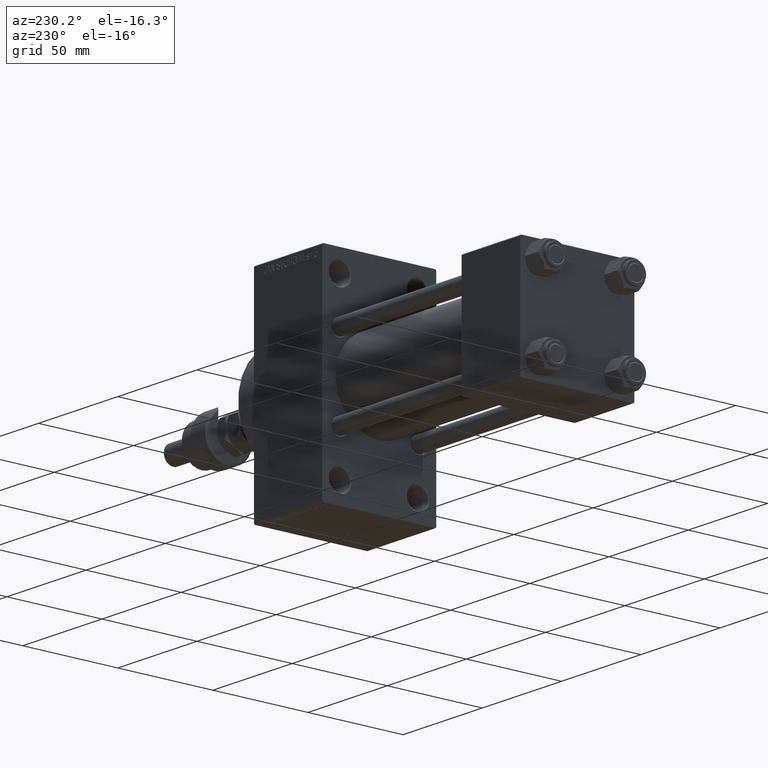
[diagram: clean part render]
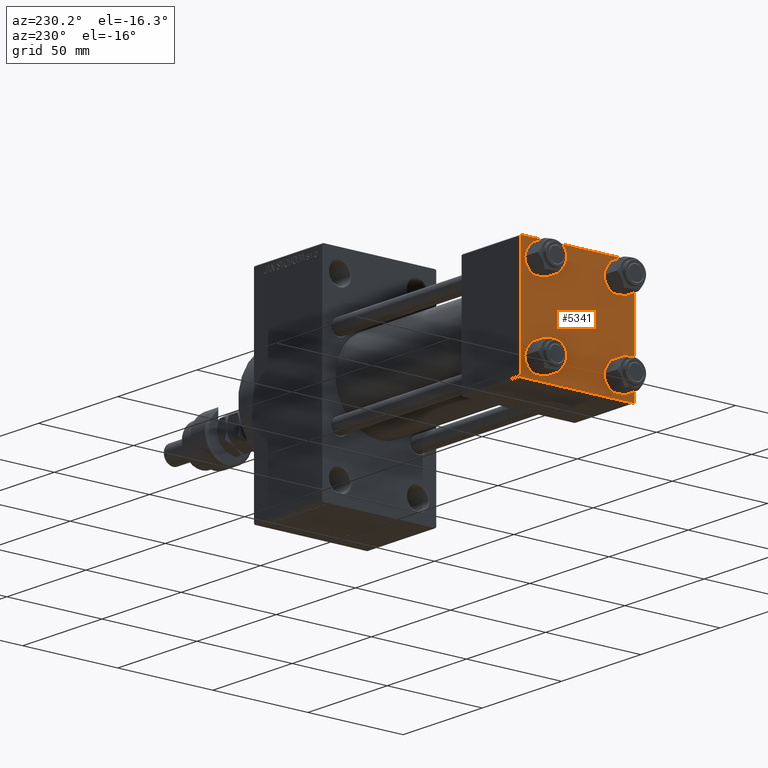
[diagram: same view with one face highlighted and labeled with its STEP entity id]
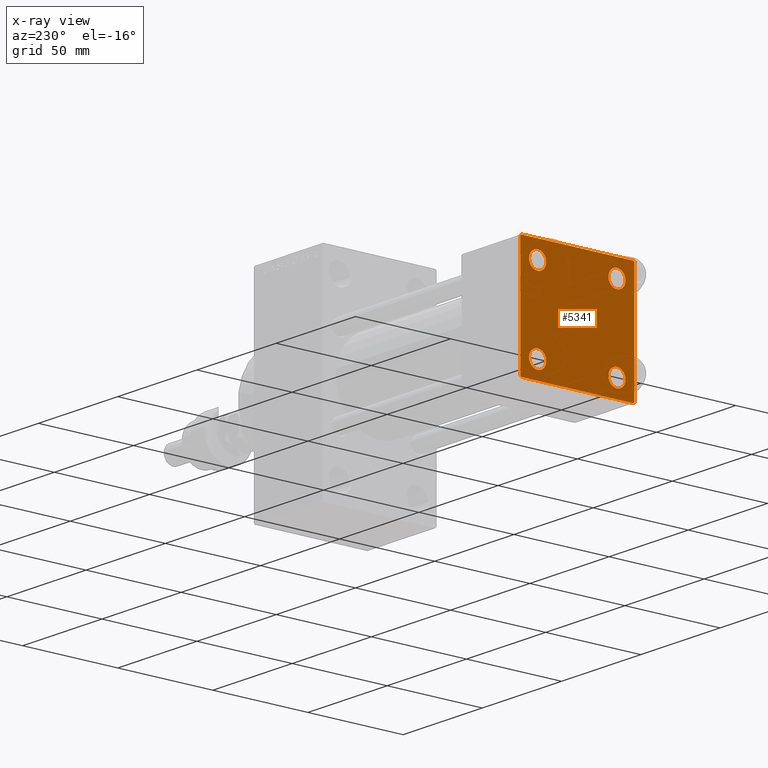
[diagram: x-ray of the same camera — body ghosted, the highlighted face saturated]
A machine part, auxiliary view. The second image highlights one B-rep face of the part: STEP entity #5341.
The next image is the same camera in x-ray: the body ghosted, the highlighted face saturated — about 0% of this face is hidden behind the body in this view.
In plain terms, the highlighted planar face has unit normal (-1, 0, 0).
Its self-contained STEP definition (entity closure, byte-faithful):
#428 = CARTESIAN_POINT ( 'NONE',  ( 0.000000000000000000, -29.49999999999998579, 29.99999999999999289 ) ) ;
#661 = VECTOR ( 'NONE', #11558, 1000.000000000000000 ) ;
#783 = EDGE_CURVE ( 'NONE', #28295, #49332, #1741, .T. ) ;
#871 = LINE ( 'NONE', #47656, #21220 ) ;
#956 = DIRECTION ( 'NONE',  ( 0.000000000000000000, -1.000000000000000000, -1.156482317317871725E-16 ) ) ;
#1286 = DIRECTION ( 'NONE',  ( 0.000000000000000000, 0.000000000000000000, 1.000000000000000000 ) ) ;
#1647 = DIRECTION ( 'NONE',  ( 1.000000000000000000, -0.000000000000000000, 0.000000000000000000 ) ) ;
#1741 = CIRCLE ( 'NONE', #8215, 4.500000000000017764 ) ;
#2304 = FACE_BOUND ( 'NONE', #16369, .T. ) ;
#2363 = CIRCLE ( 'NONE', #19297, 4.500000000000017764 ) ;
#2379 = CIRCLE ( 'NONE', #46018, 4.500000000000017764 ) ;
#2483 = VERTEX_POINT ( 'NONE', #35239 ) ;
#3464 = CARTESIAN_POINT ( 'NONE',  ( 0.000000000000000000, -30.00000000000000000, 29.99999999999999289 ) ) ;
#3608 = VECTOR ( 'NONE', #48119, 1000.000000000000000 ) ;
#4138 = EDGE_CURVE ( 'NONE', #31758, #2483, #871, .T. ) ;
#5220 = ORIENTED_EDGE ( 'NONE', *, *, #6874, .T. ) ;
#5341 = ADVANCED_FACE ( 'NONE', ( #2304, #21014, #36719, #36223, #48589 ), #17972, .T. ) ;
#5851 = CIRCLE ( 'NONE', #45483, 4.500000000000017764 ) ;
#6087 = ORIENTED_EDGE ( 'NONE', *, *, #783, .T. ) ;
#6670 = DIRECTION ( 'NONE',  ( 1.000000000000000000, -0.000000000000000000, 0.000000000000000000 ) ) ;
#6874 = EDGE_CURVE ( 'NONE', #17531, #48382, #20311, .T. ) ;
#7130 = VERTEX_POINT ( 'NONE', #36436 ) ;
#7954 = ORIENTED_EDGE ( 'NONE', *, *, #46019, .T. ) ;
#7967 = VECTOR ( 'NONE', #27966, 1000.000000000000114 ) ;
#8018 = CARTESIAN_POINT ( 'NONE',  ( 0.000000000000000000, -20.84999999999999076, -20.85000000000000497 ) ) ;
#8215 = AXIS2_PLACEMENT_3D ( 'NONE', #8018, #35105, #16619 ) ;
#8433 = ORIENTED_EDGE ( 'NONE', *, *, #14294, .T. ) ;
#9392 = CIRCLE ( 'NONE', #42526, 4.500000000000017764 ) ;
#9634 = EDGE_CURVE ( 'NONE', #31758, #44891, #15643, .T. ) ;
#9849 = CARTESIAN_POINT ( 'NONE',  ( 0.000000000000000000, 29.99999999999999289, 30.00000000000000000 ) ) ;
#10265 = LINE ( 'NONE', #41150, #14664 ) ;
#10310 = ORIENTED_EDGE ( 'NONE', *, *, #49909, .T. ) ;
#11254 = CIRCLE ( 'NONE', #16094, 4.500000000000017764 ) ;
#11558 = DIRECTION ( 'NONE',  ( 0.000000000000000000, 0.000000000000000000, -1.000000000000000000 ) ) ;
#11711 = CARTESIAN_POINT ( 'NONE',  ( 0.000000000000000000, -20.84999999999999076, -25.35000000000002274 ) ) ;
#12919 = DIRECTION ( 'NONE',  ( 1.000000000000000000, -0.000000000000000000, 0.000000000000000000 ) ) ;
#12958 = CARTESIAN_POINT ( 'NONE',  ( 0.000000000000000000, -20.84999999999999076, -16.34999999999998721 ) ) ;
#13551 = ORIENTED_EDGE ( 'NONE', *, *, #20188, .T. ) ;
#14294 = EDGE_CURVE ( 'NONE', #28059, #44891, #34184, .T. ) ;
#14664 = VECTOR ( 'NONE', #21894, 999.9999999999998863 ) ;
#15643 = LINE ( 'NONE', #38918, #24709 ) ;
#16094 = AXIS2_PLACEMENT_3D ( 'NONE', #29568, #25757, #49300 ) ;
#16175 = ORIENTED_EDGE ( 'NONE', *, *, #17795, .T. ) ;
#16369 = EDGE_LOOP ( 'NONE', ( #7954, #24658 ) ) ;
#16619 = DIRECTION ( 'NONE',  ( 0.000000000000000000, 0.000000000000000000, 1.000000000000000000 ) ) ;
#16631 = VECTOR ( 'NONE', #21970, 1000.000000000000000 ) ;
#16993 = ORIENTED_EDGE ( 'NONE', *, *, #27800, .T. ) ;
#17531 = VERTEX_POINT ( 'NONE', #23032 ) ;
#17795 = EDGE_CURVE ( 'NONE', #49332, #28295, #11254, .T. ) ;
#17972 = PLANE ( 'NONE',  #22898 ) ;
#18474 = DIRECTION ( 'NONE',  ( -0.000000000000000000, 0.7071067811865474617, 0.7071067811865474617 ) ) ;
#19031 = ORIENTED_EDGE ( 'NONE', *, *, #9634, .F. ) ;
#19297 = AXIS2_PLACEMENT_3D ( 'NONE', #23298, #31666, #34958 ) ;
#19371 = LINE ( 'NONE', #34820, #7967 ) ;
#19455 = EDGE_CURVE ( 'NONE', #48382, #35226, #19371, .T. ) ;
#20188 = EDGE_CURVE ( 'NONE', #40382, #46050, #2363, .T. ) ;
#20311 = LINE ( 'NONE', #32701, #3608 ) ;
#20808 = VECTOR ( 'NONE', #18474, 1000.000000000000114 ) ;
#20832 = CIRCLE ( 'NONE', #21618, 4.500000000000017764 ) ;
#21014 = FACE_BOUND ( 'NONE', #28182, .T. ) ;
#21104 = CARTESIAN_POINT ( 'NONE',  ( 0.000000000000000000, -30.00000000000000000, -29.50000000000001776 ) ) ;
#21220 = VECTOR ( 'NONE', #43369, 1000.000000000000114 ) ;
#21558 = ORIENTED_EDGE ( 'NONE', *, *, #19455, .T. ) ;
#21618 = AXIS2_PLACEMENT_3D ( 'NONE', #44042, #12919, #1286 ) ;
#21823 = CARTESIAN_POINT ( 'NONE',  ( 0.000000000000000000, 20.84999999999999787, -20.85000000000000142 ) ) ;
#21894 = DIRECTION ( 'NONE',  ( -0.000000000000000000, -0.7071067811865574537, -0.7071067811865376918 ) ) ;
#21970 = DIRECTION ( 'NONE',  ( 0.000000000000000000, 0.000000000000000000, -1.000000000000000000 ) ) ;
#22319 = VERTEX_POINT ( 'NONE', #31773 ) ;
#22735 = DIRECTION ( 'NONE',  ( 0.000000000000000000, 0.000000000000000000, 1.000000000000000000 ) ) ;
#22898 = AXIS2_PLACEMENT_3D ( 'NONE', #47857, #32428, #28631 ) ;
#23032 = CARTESIAN_POINT ( 'NONE',  ( 0.000000000000000000, 29.49999999999997868, -30.00000000000000000 ) ) ;
#23298 = CARTESIAN_POINT ( 'NONE',  ( 0.000000000000000000, 20.84999999999999787, 20.85000000000000142 ) ) ;
#23946 = ORIENTED_EDGE ( 'NONE', *, *, #39590, .F. ) ;
#24658 = ORIENTED_EDGE ( 'NONE', *, *, #35117, .T. ) ;
#24709 = VECTOR ( 'NONE', #956, 1000.000000000000000 ) ;
#25096 = CARTESIAN_POINT ( 'NONE',  ( 0.000000000000000000, 20.84999999999999787, 25.35000000000001918 ) ) ;
#25757 = DIRECTION ( 'NONE',  ( 1.000000000000000000, -0.000000000000000000, 0.000000000000000000 ) ) ;
#26041 = AXIS2_PLACEMENT_3D ( 'NONE', #21823, #6670, #32992 ) ;
#27328 = EDGE_CURVE ( 'NONE', #49667, #22319, #34947, .T. ) ;
#27800 = EDGE_CURVE ( 'NONE', #22319, #49667, #5851, .T. ) ;
#27966 = DIRECTION ( 'NONE',  ( 0.000000000000000000, -0.7071067811865474617, 0.7071067811865474617 ) ) ;
#28059 = VERTEX_POINT ( 'NONE', #32011 ) ;
#28182 = EDGE_LOOP ( 'NONE', ( #6087, #16175 ) ) ;
#28295 = VERTEX_POINT ( 'NONE', #12958 ) ;
#28631 = DIRECTION ( 'NONE',  ( -0.000000000000000000, 0.000000000000000000, 1.000000000000000000 ) ) ;
#28865 = EDGE_LOOP ( 'NONE', ( #42515, #10310, #5220, #21558, #23946, #8433, #19031, #34006 ) ) ;
#29208 = CARTESIAN_POINT ( 'NONE',  ( 0.000000000000000000, -20.84999999999999076, 20.85000000000000497 ) ) ;
#29568 = CARTESIAN_POINT ( 'NONE',  ( 0.000000000000000000, -20.84999999999999076, -20.85000000000000497 ) ) ;
#30432 = CARTESIAN_POINT ( 'NONE',  ( 0.000000000000000000, -29.50000000000000000, -30.00000000000000711 ) ) ;
#31666 = DIRECTION ( 'NONE',  ( 1.000000000000000000, -0.000000000000000000, 0.000000000000000000 ) ) ;
#31758 = VERTEX_POINT ( 'NONE', #43424 ) ;
#31773 = CARTESIAN_POINT ( 'NONE',  ( 0.000000000000000000, 20.84999999999999787, -16.34999999999998366 ) ) ;
#32011 = CARTESIAN_POINT ( 'NONE',  ( 0.000000000000000000, -30.00000000000000000, 29.49999999999999289 ) ) ;
#32077 = DIRECTION ( 'NONE',  ( 1.000000000000000000, -0.000000000000000000, 0.000000000000000000 ) ) ;
#32177 = ORIENTED_EDGE ( 'NONE', *, *, #27328, .T. ) ;
#32428 = DIRECTION ( 'NONE',  ( -1.000000000000000000, 0.000000000000000000, -0.000000000000000000 ) ) ;
#32701 = CARTESIAN_POINT ( 'NONE',  ( 0.000000000000000000, 29.99999999999999289, -30.00000000000000000 ) ) ;
#32992 = DIRECTION ( 'NONE',  ( 0.000000000000000000, 0.000000000000000000, 1.000000000000000000 ) ) ;
#34006 = ORIENTED_EDGE ( 'NONE', *, *, #4138, .T. ) ;
#34184 = LINE ( 'NONE', #34422, #20808 ) ;
#34395 = CARTESIAN_POINT ( 'NONE',  ( 0.000000000000000000, -20.84999999999999076, 16.34999999999998721 ) ) ;
#34422 = CARTESIAN_POINT ( 'NONE',  ( -0.000000000000000000, -29.74999999999999645, 29.74999999999999645 ) ) ;
#34820 = CARTESIAN_POINT ( 'NONE',  ( 0.000000000000000000, -29.75000000000001066, -29.75000000000001066 ) ) ;
#34947 = CIRCLE ( 'NONE', #26041, 4.500000000000017764 ) ;
#34948 = EDGE_CURVE ( 'NONE', #2483, #7130, #40973, .T. ) ;
#34958 = DIRECTION ( 'NONE',  ( 0.000000000000000000, 0.000000000000000000, 1.000000000000000000 ) ) ;
#35105 = DIRECTION ( 'NONE',  ( 1.000000000000000000, -0.000000000000000000, 0.000000000000000000 ) ) ;
#35117 = EDGE_CURVE ( 'NONE', #38520, #41168, #9392, .T. ) ;
#35226 = VERTEX_POINT ( 'NONE', #21104 ) ;
#35239 = CARTESIAN_POINT ( 'NONE',  ( 0.000000000000000000, 29.99999999999999289, 29.50000000000000000 ) ) ;
#36223 = FACE_BOUND ( 'NONE', #38151, .T. ) ;
#36436 = CARTESIAN_POINT ( 'NONE',  ( 0.000000000000000000, 29.99999999999999289, -29.50000000000000000 ) ) ;
#36719 = FACE_BOUND ( 'NONE', #46703, .T. ) ;
#38151 = EDGE_LOOP ( 'NONE', ( #13551, #40368 ) ) ;
#38520 = VERTEX_POINT ( 'NONE', #34395 ) ;
#38635 = LINE ( 'NONE', #3464, #661 ) ;
#38918 = CARTESIAN_POINT ( 'NONE',  ( 0.000000000000000000, 29.99999999999999289, 30.00000000000000000 ) ) ;
#39240 = EDGE_CURVE ( 'NONE', #46050, #40382, #20832, .T. ) ;
#39590 = EDGE_CURVE ( 'NONE', #28059, #35226, #38635, .T. ) ;
#40368 = ORIENTED_EDGE ( 'NONE', *, *, #39240, .T. ) ;
#40382 = VERTEX_POINT ( 'NONE', #25096 ) ;
#40927 = CARTESIAN_POINT ( 'NONE',  ( 0.000000000000000000, -20.84999999999999076, 25.35000000000002274 ) ) ;
#40973 = LINE ( 'NONE', #9849, #16631 ) ;
#41150 = CARTESIAN_POINT ( 'NONE',  ( 0.000000000000000000, 29.74999999999957723, -29.75000000000040501 ) ) ;
#41168 = VERTEX_POINT ( 'NONE', #40927 ) ;
#42474 = DIRECTION ( 'NONE',  ( 1.000000000000000000, -0.000000000000000000, 0.000000000000000000 ) ) ;
#42515 = ORIENTED_EDGE ( 'NONE', *, *, #34948, .T. ) ;
#42526 = AXIS2_PLACEMENT_3D ( 'NONE', #29208, #1647, #48430 ) ;
#43369 = DIRECTION ( 'NONE',  ( 0.000000000000000000, 0.7071067811865474617, -0.7071067811865474617 ) ) ;
#43424 = CARTESIAN_POINT ( 'NONE',  ( 0.000000000000000000, 29.49999999999999289, 30.00000000000000000 ) ) ;
#43455 = CARTESIAN_POINT ( 'NONE',  ( 0.000000000000000000, 20.84999999999999787, -20.85000000000000142 ) ) ;
#43952 = DIRECTION ( 'NONE',  ( 0.000000000000000000, 0.000000000000000000, 1.000000000000000000 ) ) ;
#44042 = CARTESIAN_POINT ( 'NONE',  ( 0.000000000000000000, 20.84999999999999787, 20.85000000000000142 ) ) ;
#44891 = VERTEX_POINT ( 'NONE', #428 ) ;
#45483 = AXIS2_PLACEMENT_3D ( 'NONE', #43455, #32077, #43952 ) ;
#46017 = CARTESIAN_POINT ( 'NONE',  ( 0.000000000000000000, -20.84999999999999076, 20.85000000000000497 ) ) ;
#46018 = AXIS2_PLACEMENT_3D ( 'NONE', #46017, #42474, #22735 ) ;
#46019 = EDGE_CURVE ( 'NONE', #41168, #38520, #2379, .T. ) ;
#46050 = VERTEX_POINT ( 'NONE', #49572 ) ;
#46703 = EDGE_LOOP ( 'NONE', ( #16993, #32177 ) ) ;
#47656 = CARTESIAN_POINT ( 'NONE',  ( 0.000000000000000000, 29.74999999999999645, 29.74999999999999645 ) ) ;
#47857 = CARTESIAN_POINT ( 'NONE',  ( 0.000000000000000000, 0.000000000000000000, 0.000000000000000000 ) ) ;
#48119 = DIRECTION ( 'NONE',  ( 0.000000000000000000, -1.000000000000000000, -1.156482317317871725E-16 ) ) ;
#48382 = VERTEX_POINT ( 'NONE', #30432 ) ;
#48430 = DIRECTION ( 'NONE',  ( 0.000000000000000000, 0.000000000000000000, 1.000000000000000000 ) ) ;
#48589 = FACE_OUTER_BOUND ( 'NONE', #28865, .T. ) ;
#49300 = DIRECTION ( 'NONE',  ( 0.000000000000000000, 0.000000000000000000, 1.000000000000000000 ) ) ;
#49332 = VERTEX_POINT ( 'NONE', #11711 ) ;
#49364 = CARTESIAN_POINT ( 'NONE',  ( 0.000000000000000000, 20.84999999999999787, -25.35000000000001918 ) ) ;
#49572 = CARTESIAN_POINT ( 'NONE',  ( 0.000000000000000000, 20.84999999999999787, 16.34999999999998366 ) ) ;
#49667 = VERTEX_POINT ( 'NONE', #49364 ) ;
#49909 = EDGE_CURVE ( 'NONE', #7130, #17531, #10265, .T. ) ;